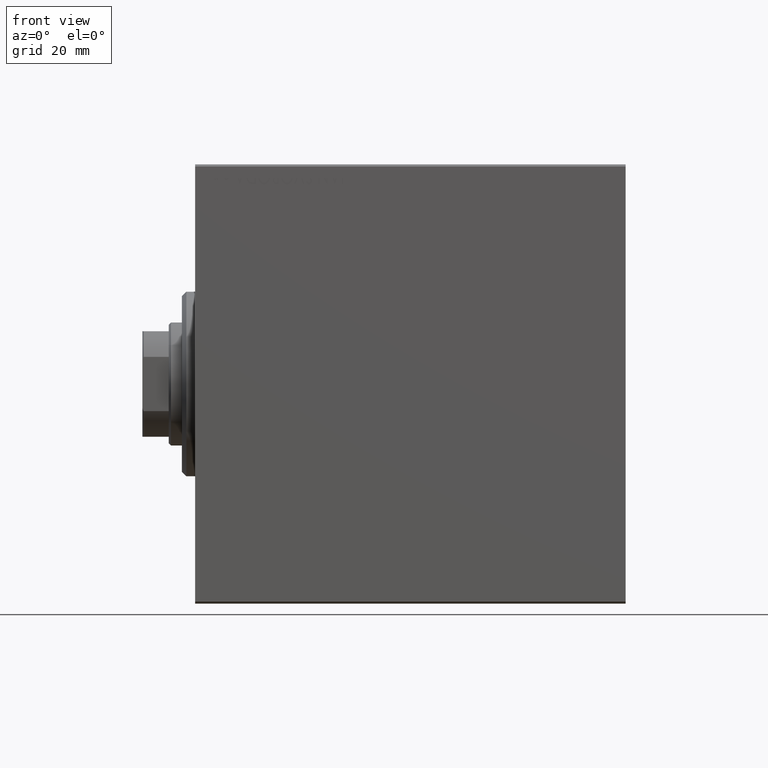
[diagram: clean part render]
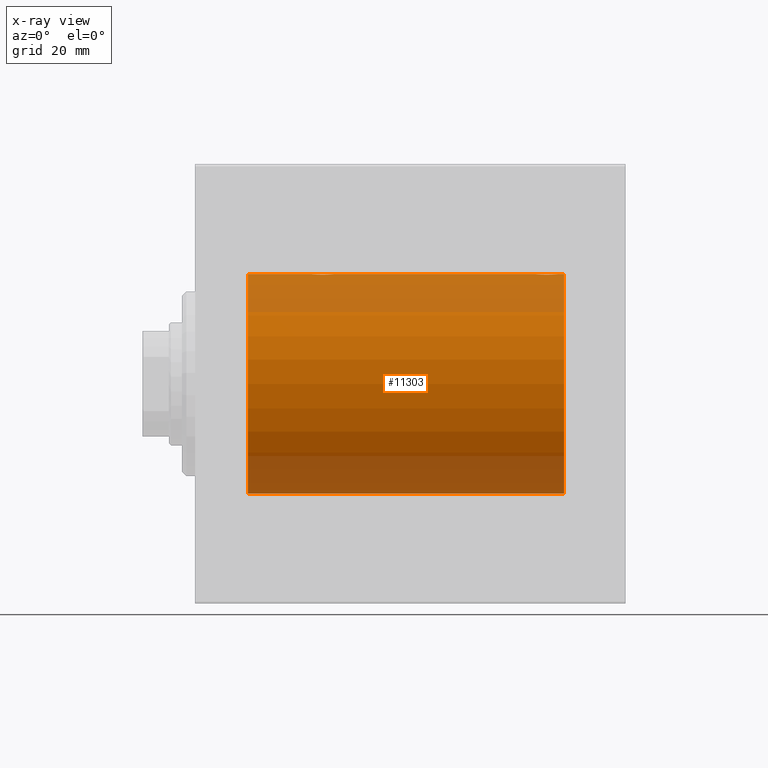
[diagram: x-ray — body ghosted, one internal face saturated and labeled with its STEP entity id]
A machine part, front view, then the same camera in x-ray: the body is ghosted and one INTERNAL B-rep face — a face not visible from any outside direction — is saturated and labeled: STEP entity #11303.
In plain terms, the highlighted cylindrical surface (partial cylindrical patch) has radius 25 mm, axis along (-1, -0, -0).
Its self-contained STEP definition (entity closure, byte-faithful):
#584 = CARTESIAN_POINT ( 'NONE',  ( 26.50000000000000711, -0.1631750940176214526, 25.00000000000000711 ) ) ;
#599 = CARTESIAN_POINT ( 'NONE',  ( 77.82988709719073483, -1.252049606094335799, 24.96900299967626680 ) ) ;
#803 = CARTESIAN_POINT ( 'NONE',  ( 31.16827641493956591, -1.255214705003184106, 24.96884293994578385 ) ) ;
#949 = VECTOR ( 'NONE', #5718, 1000.000000000000000 ) ;
#1066 = ORIENTED_EDGE ( 'NONE', *, *, #29666, .T. ) ;
#1122 = EDGE_CURVE ( 'NONE', #43584, #10061, #14285, .T. ) ;
#1258 = CARTESIAN_POINT ( 'NONE',  ( 31.43349355239747567, -0.6588655613945894052, 24.99312727339970053 ) ) ;
#1319 = EDGE_CURVE ( 'NONE', #29531, #37776, #25960, .T. ) ;
#1673 = EDGE_CURVE ( 'NONE', #37451, #35507, #14591, .T. ) ;
#1844 = B_SPLINE_CURVE_WITH_KNOTS ( 'NONE', 3,
 ( #31407, #584, #28241, #30956, #14099, #17250, #27803, #14315, #13873, #41725, #27578, #28468, #17916, #21503, #11380, #41296, #24650, #38363, #35206, #10493, #24218, #7558, #37920, #31621, #21287, #20837, #10703, #803, #39258, #1258, #32072, #21960 ),
 .UNSPECIFIED., .F., .F.,
 ( 4, 2, 2, 2, 2, 2, 2, 2, 2, 2, 2, 2, 2, 2, 2, 4 ),
 ( 0.007821024441662254717, 0.008309723826317859385, 0.008798423210973465788, 0.009287122595629072191, 0.009775821980284676860, 0.01026452136494028153, 0.01075322074959588793, 0.01124192013425149433, 0.01173061951890709900, 0.01221931890356270367, 0.01270801828821831007, 0.01319671767287391648, 0.01368541705752952115, 0.01417411644218512581, 0.01466281582684073222, 0.01564021459615194329 ),
 .UNSPECIFIED. ) ;
#2281 = CARTESIAN_POINT ( 'NONE',  ( 11.99999999999999645, 3.061616997868382254E-15, -25.00000000000000000 ) ) ;
#3845 = AXIS2_PLACEMENT_3D ( 'NONE', #18409, #11633, #7592 ) ;
#3977 = CARTESIAN_POINT ( 'NONE',  ( 80.64560666148635448, -2.420689345803758830, 24.88254961038874313 ) ) ;
#4197 = CARTESIAN_POINT ( 'NONE',  ( 79.83293504821945419, -2.499872792855085013, 24.87469871246082675 ) ) ;
#4414 = CARTESIAN_POINT ( 'NONE',  ( 81.52256774340189338, -1.989585286700245925, 24.92087098724765681 ) ) ;
#4579 = VECTOR ( 'NONE', #24385, 1000.000000000000000 ) ;
#4855 = ORIENTED_EDGE ( 'NONE', *, *, #16117, .F. ) ;
#5718 = DIRECTION ( 'NONE',  ( -1.000000000000000000, -0.000000000000000000, -0.000000000000000000 ) ) ;
#5799 = CARTESIAN_POINT ( 'NONE',  ( 84.00000000000000000, 0.000000000000000000, 25.00000000000000000 ) ) ;
#7075 = LINE ( 'NONE', #14275, #4579 ) ;
#7558 = CARTESIAN_POINT ( 'NONE',  ( 30.10723845838410284, -2.247417070759902380, 24.89885693081946272 ) ) ;
#7592 = DIRECTION ( 'NONE',  ( 0.000000000000000000, 0.000000000000000000, 1.000000000000000000 ) ) ;
#7791 = CARTESIAN_POINT ( 'NONE',  ( 81.25084023924057419, -2.170728182476720836, 24.90574631553725027 ) ) ;
#7892 = ORIENTED_EDGE ( 'NONE', *, *, #1319, .F. ) ;
#8405 = CARTESIAN_POINT ( 'NONE',  ( 84.00000000000000000, 0.000000000000000000, 0.000000000000000000 ) ) ;
#8715 = VERTEX_POINT ( 'NONE', #11368 ) ;
#10061 = VERTEX_POINT ( 'NONE', #39025 ) ;
#10493 = CARTESIAN_POINT ( 'NONE',  ( 29.64560666148631896, -2.420689345803764159, 24.88254961038873958 ) ) ;
#10508 = CARTESIAN_POINT ( 'NONE',  ( 81.10723845838413126, -2.247417070759898383, 24.89885693081947338 ) ) ;
#10703 = CARTESIAN_POINT ( 'NONE',  ( 30.98538033717095175, -1.528152964861314800, 24.95362559291378801 ) ) ;
#10717 = CARTESIAN_POINT ( 'NONE',  ( 78.47463817756926119, -1.987446652080270271, 24.92104239223421303 ) ) ;
#11174 = CARTESIAN_POINT ( 'NONE',  ( 77.75239748980452248, -1.106703319666889396, 24.97594585958023572 ) ) ;
#11303 = ADVANCED_FACE ( 'NONE', ( #43005 ), #36720, .F. ) ;
#11368 = CARTESIAN_POINT ( 'NONE',  ( 77.50000000000001421, -1.940203396391078535E-23, 25.00000000000000000 ) ) ;
#11380 = CARTESIAN_POINT ( 'NONE',  ( 28.35095609830903740, -2.419770561643915130, 24.88263927071751169 ) ) ;
#11633 = DIRECTION ( 'NONE',  ( -1.000000000000000000, 0.000000000000000000, 0.000000000000000000 ) ) ;
#13000 = CARTESIAN_POINT ( 'NONE',  ( 77.57985090779074255, -0.6480119923854255060, 24.99212088949390775 ) ) ;
#13873 = CARTESIAN_POINT ( 'NONE',  ( 27.11587617213528745, -1.651251241585107055, 24.94567559498349141 ) ) ;
#14099 = CARTESIAN_POINT ( 'NONE',  ( 26.62784030591392437, -0.8058335233485491855, 24.98746277938383287 ) ) ;
#14115 = CARTESIAN_POINT ( 'NONE',  ( 81.98538033717099438, -1.528152964861309915, 24.95362559291379156 ) ) ;
#14275 = CARTESIAN_POINT ( 'NONE',  ( 84.00000000000000000, 0.000000000000000000, 25.00000000000000000 ) ) ;
#14285 = LINE ( 'NONE', #20810, #28240 ) ;
#14315 = CARTESIAN_POINT ( 'NONE',  ( 27.01250184165601809, -1.525407911884372192, 24.95379469572361941 ) ) ;
#14551 = CARTESIAN_POINT ( 'NONE',  ( 78.01250184165604651, -1.525407911884365530, 24.95379469572362297 ) ) ;
#14591 = LINE ( 'NONE', #34168, #37584 ) ;
#16117 = EDGE_CURVE ( 'NONE', #37451, #29531, #17398, .T. ) ;
#16392 = CARTESIAN_POINT ( 'NONE',  ( 77.50000000000004263, -0.1631750940176218967, 25.00000000000000355 ) ) ;
#16988 = CARTESIAN_POINT ( 'NONE',  ( 84.00000000000000000, 0.000000000000000000, 0.000000000000000000 ) ) ;
#17250 = CARTESIAN_POINT ( 'NONE',  ( 26.75239748980448695, -1.106703319666887397, 24.97594585958023572 ) ) ;
#17263 = CARTESIAN_POINT ( 'NONE',  ( 78.88963203491135801, -2.245863995402903601, 24.89899750494197050 ) ) ;
#17398 = CIRCLE ( 'NONE', #37488, 25.00000000000000000 ) ;
#17669 = DIRECTION ( 'NONE',  ( -1.000000000000000000, -0.000000000000000000, -0.000000000000000000 ) ) ;
#17712 = CARTESIAN_POINT ( 'NONE',  ( 79.35095609830904095, -2.419770561643911133, 24.88263927071751169 ) ) ;
#17916 = CARTESIAN_POINT ( 'NONE',  ( 27.88963203491136156, -2.245863995402906266, 24.89899750494197050 ) ) ;
#17932 = CARTESIAN_POINT ( 'NONE',  ( 79.19211657594196652, -2.371528299825750974, 24.88734287464371420 ) ) ;
#18161 = CARTESIAN_POINT ( 'NONE',  ( 82.50000000000001421, 2.858952873890094713E-15, 25.00000000000000000 ) ) ;
#18409 = CARTESIAN_POINT ( 'NONE',  ( 11.99999999999999645, 0.000000000000000000, 0.000000000000000000 ) ) ;
#19766 = CARTESIAN_POINT ( 'NONE',  ( 77.50000000000001421, -1.940203396391078535E-23, 25.00000000000000000 ) ) ;
#20131 = DIRECTION ( 'NONE',  ( 0.000000000000000000, 0.000000000000000000, 1.000000000000000000 ) ) ;
#20640 = CARTESIAN_POINT ( 'NONE',  ( 81.88185954148649159, -1.653834020452933817, 24.94550385189585029 ) ) ;
#20765 = EDGE_CURVE ( 'NONE', #8715, #27213, #7075, .T. ) ;
#20810 = CARTESIAN_POINT ( 'NONE',  ( 84.00000000000000000, 0.000000000000000000, 25.00000000000000000 ) ) ;
#20837 = CARTESIAN_POINT ( 'NONE',  ( 30.88185954148645962, -1.653834020452941589, 24.94550385189585029 ) ) ;
#21287 = CARTESIAN_POINT ( 'NONE',  ( 30.65121133559112820, -1.884161199660620900, 24.92916496727982434 ) ) ;
#21503 = CARTESIAN_POINT ( 'NONE',  ( 28.19211657594193809, -2.371528299825754083, 24.88734287464370709 ) ) ;
#21519 = CARTESIAN_POINT ( 'NONE',  ( 79.67052319885733880, -2.483544361357273189, 24.87635491893502149 ) ) ;
#21795 = ORIENTED_EDGE ( 'NONE', *, *, #1122, .F. ) ;
#21960 = CARTESIAN_POINT ( 'NONE',  ( 31.50000000000000000, -2.695968940278339017E-15, 25.00000000000000000 ) ) ;
#24218 = CARTESIAN_POINT ( 'NONE',  ( 29.80435660916301899, -2.372734907014179662, 24.88722742718433878 ) ) ;
#24385 = DIRECTION ( 'NONE',  ( -1.000000000000000000, -0.000000000000000000, -0.000000000000000000 ) ) ;
#24439 = CARTESIAN_POINT ( 'NONE',  ( 82.43349355239749343, -0.6588655613945808565, 24.99312727339970053 ) ) ;
#24650 = CARTESIAN_POINT ( 'NONE',  ( 28.83293504821940090, -2.499872792855088122, 24.87469871246082320 ) ) ;
#25396 = CIRCLE ( 'NONE', #3845, 25.00000000000000000 ) ;
#25902 = CARTESIAN_POINT ( 'NONE',  ( 82.50000000000001421, 2.858952873890094713E-15, 25.00000000000000000 ) ) ;
#25960 = LINE ( 'NONE', #36518, #949 ) ;
#26165 = DIRECTION ( 'NONE',  ( 0.000000000000000000, 0.000000000000000000, 1.000000000000000000 ) ) ;
#26718 = CARTESIAN_POINT ( 'NONE',  ( 77.62784030591393503, -0.8058335233485520721, 24.98746277938383287 ) ) ;
#27213 = VERTEX_POINT ( 'NONE', #29642 ) ;
#27578 = CARTESIAN_POINT ( 'NONE',  ( 27.47463817756919369, -1.987446652080268938, 24.92104239223420592 ) ) ;
#27592 = CARTESIAN_POINT ( 'NONE',  ( 80.32596570039464723, -2.484007091859765204, 24.87630842367763861 ) ) ;
#27803 = CARTESIAN_POINT ( 'NONE',  ( 26.82988709719075970, -1.252049606094344236, 24.96900299967627390 ) ) ;
#27819 = CARTESIAN_POINT ( 'NONE',  ( 82.16827641493958367, -1.255214705003178777, 24.96884293994578030 ) ) ;
#28240 = VECTOR ( 'NONE', #17669, 1000.000000000000000 ) ;
#28241 = CARTESIAN_POINT ( 'NONE',  ( 26.51582159942343608, -0.3254210271412232292, 24.99840249400844883 ) ) ;
#28255 = CARTESIAN_POINT ( 'NONE',  ( 81.65121133559114242, -1.884161199660613351, 24.92916496727982434 ) ) ;
#28283 = B_SPLINE_CURVE_WITH_KNOTS ( 'NONE', 3,
 ( #19766, #16392, #30097, #13000, #26718, #11174, #599, #14551, #35222, #30970, #10717, #31633, #17263, #17932, #17712, #21519, #4197, #31196, #27592, #3977, #38602, #10508, #7791, #4414, #28255, #20640, #14115, #27819, #38148, #24439, #35003, #18161 ),
 .UNSPECIFIED., .F., .F.,
 ( 4, 2, 2, 2, 2, 2, 2, 2, 2, 2, 2, 2, 2, 2, 2, 4 ),
 ( 0.007821024441662285942, 0.008309723826317894080, 0.008798423210973503952, 0.009287122595629112090, 0.009775821980284721963, 0.01026452136494033010, 0.01075322074959593997, 0.01124192013425154811, 0.01173061951890715798, 0.01221931890356276612, 0.01270801828821837426, 0.01319671767287398240, 0.01368541705752959400, 0.01417411644218520214, 0.01466281582684081028, 0.01564021459615201268 ),
 .UNSPECIFIED. ) ;
#28468 = CARTESIAN_POINT ( 'NONE',  ( 27.74616804575498108, -2.169003991399877318, 24.90589728951138326 ) ) ;
#29531 = VERTEX_POINT ( 'NONE', #5799 ) ;
#29642 = CARTESIAN_POINT ( 'NONE',  ( 31.50000000000000000, -2.695968940278339017E-15, 25.00000000000000000 ) ) ;
#29666 = EDGE_CURVE ( 'NONE', #43584, #27213, #1844, .T. ) ;
#30034 = DIRECTION ( 'NONE',  ( -1.000000000000000000, 0.000000000000000000, 0.000000000000000000 ) ) ;
#30097 = CARTESIAN_POINT ( 'NONE',  ( 77.51582159942344674, -0.3254210271412246169, 24.99840249400844883 ) ) ;
#30949 = CARTESIAN_POINT ( 'NONE',  ( 26.50000000000000355, -1.940558383798427991E-23, 25.00000000000000000 ) ) ;
#30956 = CARTESIAN_POINT ( 'NONE',  ( 26.57985090779070703, -0.6480119923854241737, 24.99212088949390420 ) ) ;
#30970 = CARTESIAN_POINT ( 'NONE',  ( 78.34616663850664509, -1.881857718844724303, 24.92933960374833902 ) ) ;
#31196 = CARTESIAN_POINT ( 'NONE',  ( 80.16323589638544433, -2.500125740978196731, 24.87467329022545925 ) ) ;
#31407 = CARTESIAN_POINT ( 'NONE',  ( 26.50000000000000355, -1.940558383798427991E-23, 25.00000000000000000 ) ) ;
#31621 = CARTESIAN_POINT ( 'NONE',  ( 30.52256774340189693, -1.989585286700249700, 24.92087098724766747 ) ) ;
#31633 = CARTESIAN_POINT ( 'NONE',  ( 78.74616804575498463, -2.169003991399877762, 24.90589728951138682 ) ) ;
#32072 = CARTESIAN_POINT ( 'NONE',  ( 31.49999999999998579, -0.3305063766663723368, 25.00000000000000000 ) ) ;
#32135 = ORIENTED_EDGE ( 'NONE', *, *, #1673, .T. ) ;
#33131 = DIRECTION ( 'NONE',  ( -1.000000000000000000, -0.000000000000000000, -0.000000000000000000 ) ) ;
#34168 = CARTESIAN_POINT ( 'NONE',  ( 84.00000000000000000, 3.061616997868382254E-15, -25.00000000000000000 ) ) ;
#35003 = CARTESIAN_POINT ( 'NONE',  ( 82.50000000000005684, -0.3305063766663757230, 25.00000000000000711 ) ) ;
#35193 = AXIS2_PLACEMENT_3D ( 'NONE', #8405, #33131, #26165 ) ;
#35206 = CARTESIAN_POINT ( 'NONE',  ( 29.32596570039460104, -2.484007091859769645, 24.87630842367763506 ) ) ;
#35222 = CARTESIAN_POINT ( 'NONE',  ( 78.11587617213530166, -1.651251241585109275, 24.94567559498348785 ) ) ;
#35507 = VERTEX_POINT ( 'NONE', #2281 ) ;
#35938 = EDGE_CURVE ( 'NONE', #8715, #37776, #28283, .T. ) ;
#36518 = CARTESIAN_POINT ( 'NONE',  ( 84.00000000000000000, 0.000000000000000000, 25.00000000000000000 ) ) ;
#36720 = CYLINDRICAL_SURFACE ( 'NONE', #35193, 25.00000000000000000 ) ;
#36780 = CARTESIAN_POINT ( 'NONE',  ( 84.00000000000000000, 3.061616997868382254E-15, -25.00000000000000000 ) ) ;
#37225 = EDGE_LOOP ( 'NONE', ( #4855, #32135, #44064, #21795, #1066, #39700, #43372, #7892 ) ) ;
#37451 = VERTEX_POINT ( 'NONE', #36780 ) ;
#37488 = AXIS2_PLACEMENT_3D ( 'NONE', #16988, #30034, #20131 ) ;
#37584 = VECTOR ( 'NONE', #41122, 1000.000000000000000 ) ;
#37776 = VERTEX_POINT ( 'NONE', #25902 ) ;
#37920 = CARTESIAN_POINT ( 'NONE',  ( 30.25084023924055998, -2.170728182476724388, 24.90574631553725027 ) ) ;
#38148 = CARTESIAN_POINT ( 'NONE',  ( 82.24606379094068132, -1.109818057797411051, 24.97580694515542277 ) ) ;
#38363 = CARTESIAN_POINT ( 'NONE',  ( 29.16323589638543368, -2.500125740978199840, 24.87467329022545570 ) ) ;
#38602 = CARTESIAN_POINT ( 'NONE',  ( 80.80435660916305096, -2.372734907014176553, 24.88722742718433523 ) ) ;
#39025 = CARTESIAN_POINT ( 'NONE',  ( 11.99999999999999645, 0.000000000000000000, 25.00000000000000000 ) ) ;
#39258 = CARTESIAN_POINT ( 'NONE',  ( 31.24606379094067066, -1.109818057797418822, 24.97580694515541921 ) ) ;
#39700 = ORIENTED_EDGE ( 'NONE', *, *, #20765, .F. ) ;
#41122 = DIRECTION ( 'NONE',  ( -1.000000000000000000, -0.000000000000000000, -0.000000000000000000 ) ) ;
#41296 = CARTESIAN_POINT ( 'NONE',  ( 28.67052319885732103, -2.483544361357276742, 24.87635491893501438 ) ) ;
#41725 = CARTESIAN_POINT ( 'NONE',  ( 27.34616663850662377, -1.881857718844722971, 24.92933960374833902 ) ) ;
#42615 = EDGE_CURVE ( 'NONE', #35507, #10061, #25396, .T. ) ;
#43005 = FACE_OUTER_BOUND ( 'NONE', #37225, .T. ) ;
#43372 = ORIENTED_EDGE ( 'NONE', *, *, #35938, .T. ) ;
#43584 = VERTEX_POINT ( 'NONE', #30949 ) ;
#44064 = ORIENTED_EDGE ( 'NONE', *, *, #42615, .T. ) ;